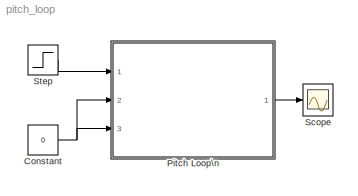
MODEL pitch_loop
KIND model
BLOCK [Constant] Constant
  SID = 19
  Value = 0
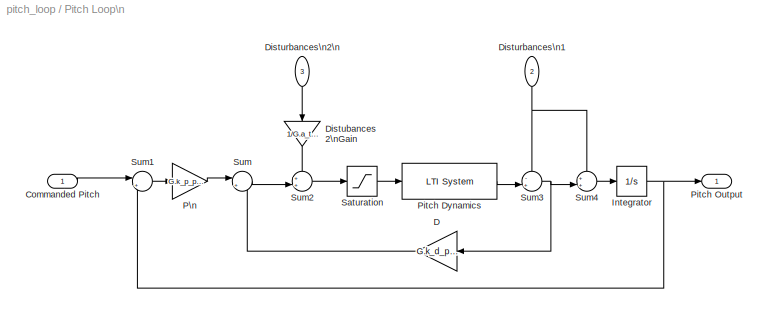
BLOCK [SubSystem] Pitch Loop\n
  Ports = [3, 1]
  RequestExecContextInheritance = off
  SID = 21
BLOCK [Inport] Pitch Loop\n/Commanded Pitch
  IconDisplay = Port number
  SID = 23
BLOCK [Gain] Pitch Loop\n/D
  Gain = G.k_d_pitch
  OutDataTypeStr = Inherit: Inherit via internal rule
  ParamDataTypeStr = Inherit: Inherit via internal rule
  SID = 2
  SaturateOnIntegerOverflow = off
BLOCK [Gain] Pitch Loop\n/Distubances 2\nGain
  Gain = 1/G.a_theta3
  OutDataTypeStr = Inherit: Inherit via internal rule
  ParamDataTypeStr = Inherit: Inherit via internal rule
  SID = 14
  SaturateOnIntegerOverflow = off
BLOCK [Inport] Pitch Loop\n/Disturbances\n1
  IconDisplay = Port number
  Port = 2
  SID = 26
BLOCK [Inport] Pitch Loop\n/Disturbances\n2\n
  IconDisplay = Port number
  Port = 3
  SID = 22
BLOCK [Integrator] Pitch Loop\n/Integrator
  Ports = [1, 1]
  SID = 4
BLOCK [Gain] Pitch Loop\n/P\n
  Gain = G.k_p_pitch
  OutDataTypeStr = Inherit: Inherit via internal rule
  ParamDataTypeStr = Inherit: Inherit via internal rule
  SID = 6
  SaturateOnIntegerOverflow = off
BLOCK [Reference] Pitch Loop\n/Pitch Dynamics  REF=cstblocks/LTI System
  IC = []
  Ports = [1, 1]
  SID = 1
  SourceBlock = cstblocks/LTI System
  SourceProductBaseCode = CT
  SourceProductName = Control System Toolbox
  SourceType = LTI Block
  sys = T_theta_dot_delta_e
BLOCK [Outport] Pitch Loop\n/Pitch Output
  IconDisplay = Port number
  SID = 24
BLOCK [Saturate] Pitch Loop\n/Saturation
  InputPortMap = u0
  LowerLimit = -G.delta_a_max
  Ports = [1, 1]
  SID = 20
  UpperLimit = G.delta_e_max
BLOCK [Sum] Pitch Loop\n/Sum
  IconShape = round
  InputSameDT = off
  Inputs = |+-
  OutDataTypeStr = Inherit: Inherit via internal rule
  Ports = [2, 1]
  SID = 3
  SaturateOnIntegerOverflow = off
BLOCK [Sum] Pitch Loop\n/Sum1
  IconShape = round
  InputSameDT = off
  Inputs = |+-
  OutDataTypeStr = Inherit: Inherit via internal rule
  Ports = [2, 1]
  SID = 5
  SaturateOnIntegerOverflow = off
BLOCK [Sum] Pitch Loop\n/Sum2
  IconShape = round
  InputSameDT = off
  Inputs = ++|
  OutDataTypeStr = Inherit: Inherit via internal rule
  Ports = [2, 1]
  SID = 13
  SaturateOnIntegerOverflow = off
BLOCK [Sum] Pitch Loop\n/Sum3
  IconShape = round
  InputSameDT = off
  Inputs = -+|
  OutDataTypeStr = Inherit: Inherit via internal rule
  Ports = [2, 1]
  SID = 25
  SaturateOnIntegerOverflow = off
BLOCK [Sum] Pitch Loop\n/Sum4
  IconShape = round
  InputSameDT = off
  Inputs = ++|
  OutDataTypeStr = Inherit: Inherit via internal rule
  Ports = [2, 1]
  SID = 27
  SaturateOnIntegerOverflow = off
BLOCK [Scope] Scope
  Floating = off
  NumInputPorts = 1
  Ports = [1]
  SID = 9
  ScopeSpecificationString = Simulink.scopes.TimeScopeBlockCfg('CurrentConfiguration', extmgr.ConfigurationSet(extmgr.Configuration('Core','General UI',true),extmgr.Configuration('Core','Source UI',true),extmgr.Configuration('Sources','WiredSimulink',true),extmgr.Configuration('Visuals','Time Domain',true,'SerializedDisplays',{struct('MinYLimReal','-0.03499','MaxYLimReal','0.31495','YLabelReal','','MinYLimMag','0.00000','MaxY...<+1385ch>
BLOCK [Step] Step
  After = pi/9
  SID = 10
  SampleTime = 0
NET Constant:1 -> Pitch Loop\n:2, Pitch Loop\n:3
LINE Pitch Loop\n/Commanded Pitch:1 -> Pitch Loop\n/Sum1:1
LINE Pitch Loop\n/D:1 -> Pitch Loop\n/Sum:2
LINE Pitch Loop\n/Distubances 2\nGain:1 -> Pitch Loop\n/Sum2:1
NET Pitch Loop\n/Disturbances\n1:1 -> Pitch Loop\n/Sum3:1, Pitch Loop\n/Sum4:1
LINE Pitch Loop\n/Disturbances\n2\n:1 -> Pitch Loop\n/Distubances 2\nGain:1
NET Pitch Loop\n/Integrator:1 -> Pitch Loop\n/Pitch Output:1, Pitch Loop\n/Sum1:2
LINE Pitch Loop\n/P\n:1 -> Pitch Loop\n/Sum:1
LINE Pitch Loop\n/Pitch Dynamics:1 -> Pitch Loop\n/Sum3:2
LINE Pitch Loop\n/Saturation:1 -> Pitch Loop\n/Pitch Dynamics:1
LINE Pitch Loop\n/Sum1:1 -> Pitch Loop\n/P\n:1
LINE Pitch Loop\n/Sum2:1 -> Pitch Loop\n/Saturation:1
NET Pitch Loop\n/Sum3:1 -> Pitch Loop\n/D:1, Pitch Loop\n/Sum4:2
LINE Pitch Loop\n/Sum4:1 -> Pitch Loop\n/Integrator:1
LINE Pitch Loop\n/Sum:1 -> Pitch Loop\n/Sum2:2
LINE Pitch Loop\n:1 -> Scope:1
LINE Step:1 -> Pitch Loop\n:1
note: NET lines group one-source signal fan-out (src -> all destinations, sorted); 1:1 wires keep LINE
